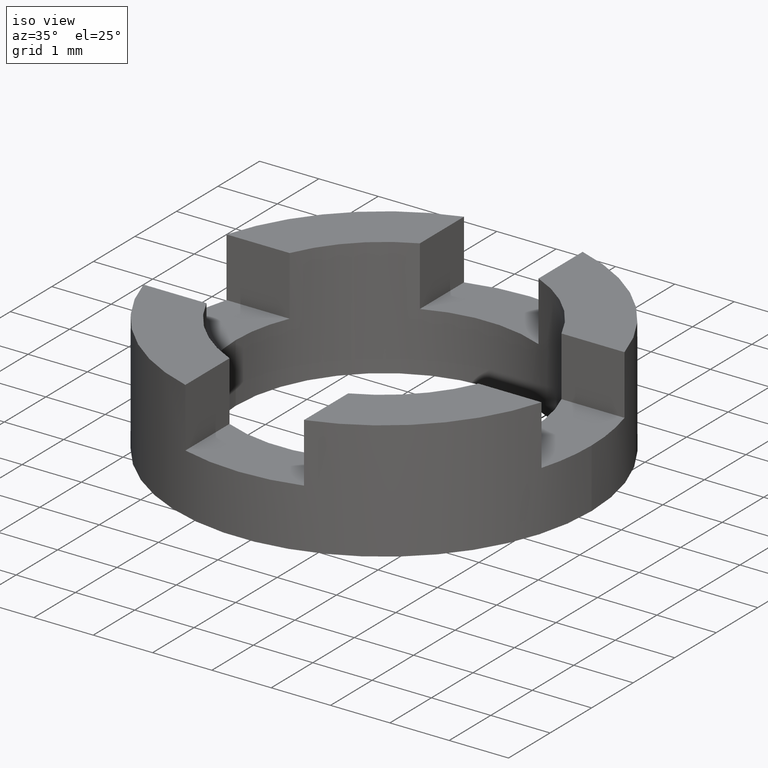
[diagram: clean part render]
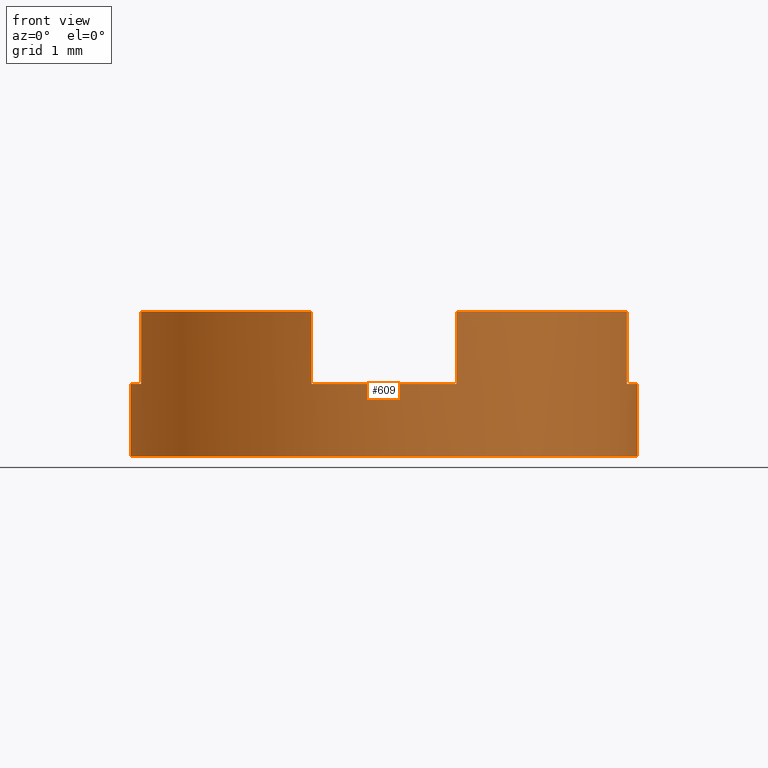
[diagram: tour spotlight — one face highlighted and labeled with its STEP entity id]
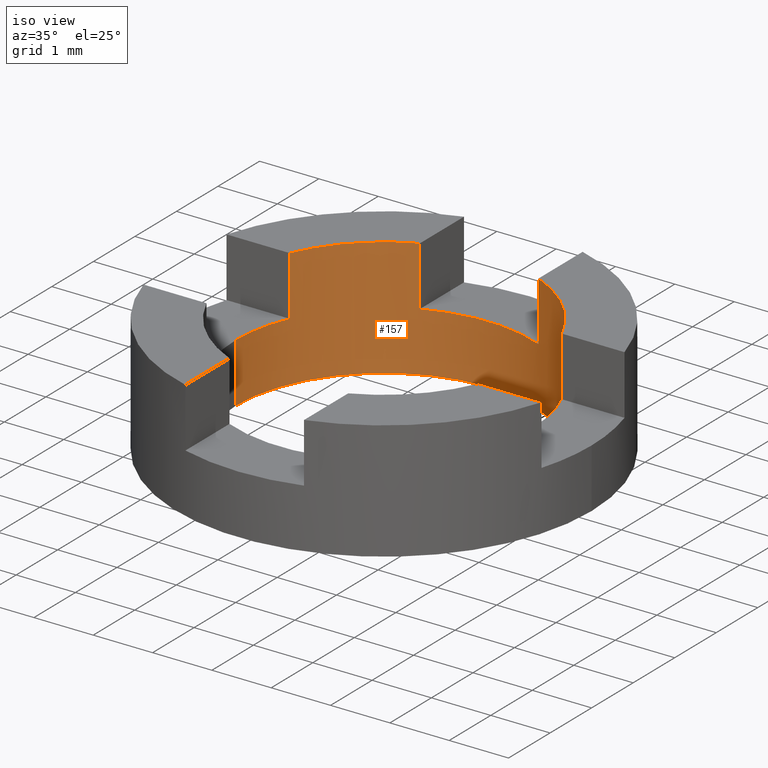
[diagram: tour spotlight — one face highlighted and labeled with its STEP entity id]
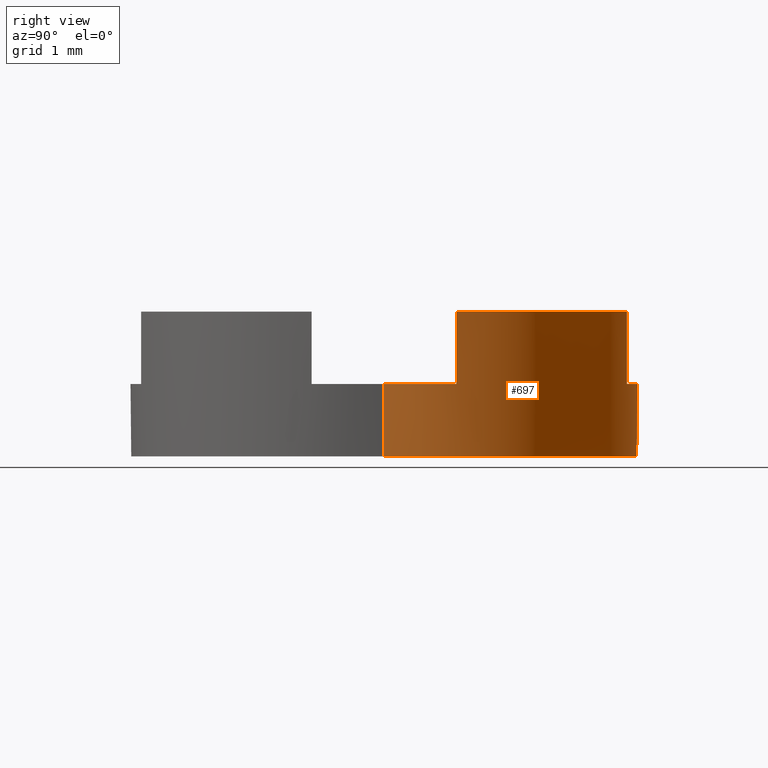
[diagram: tour spotlight — one face highlighted and labeled with its STEP entity id]
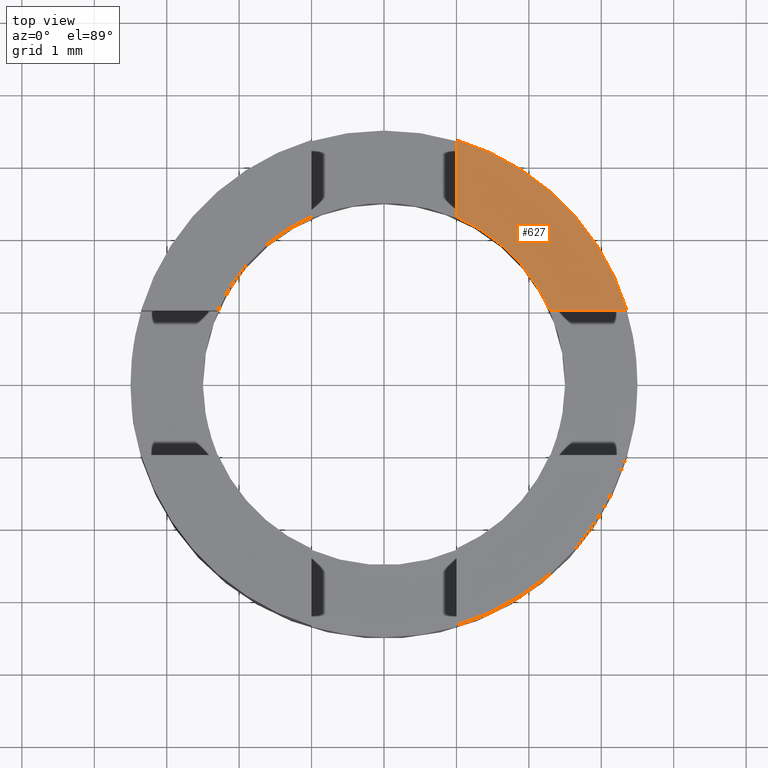
[diagram: tour spotlight — one face highlighted and labeled with its STEP entity id]
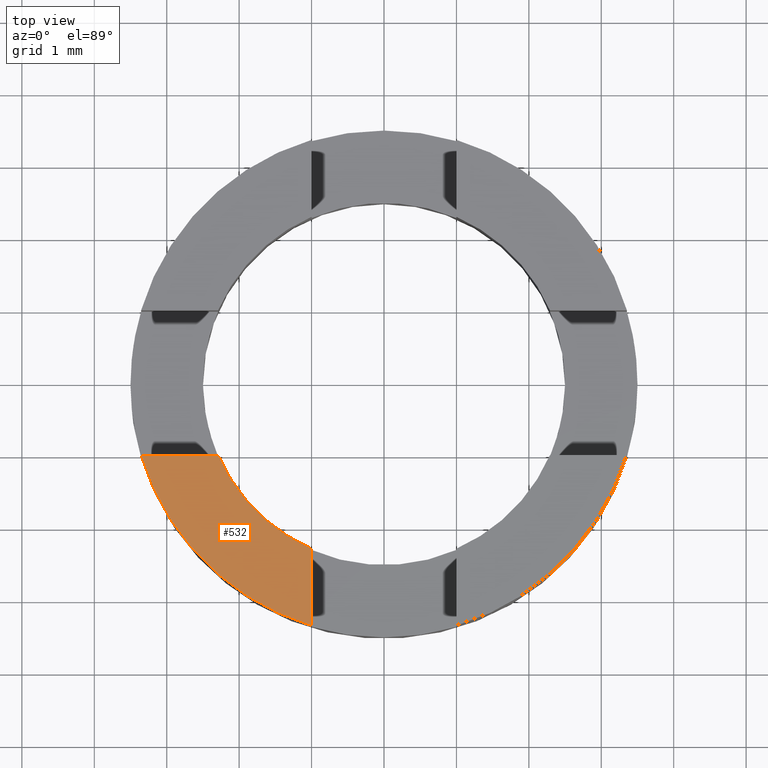
[diagram: tour spotlight — one face highlighted and labeled with its STEP entity id]
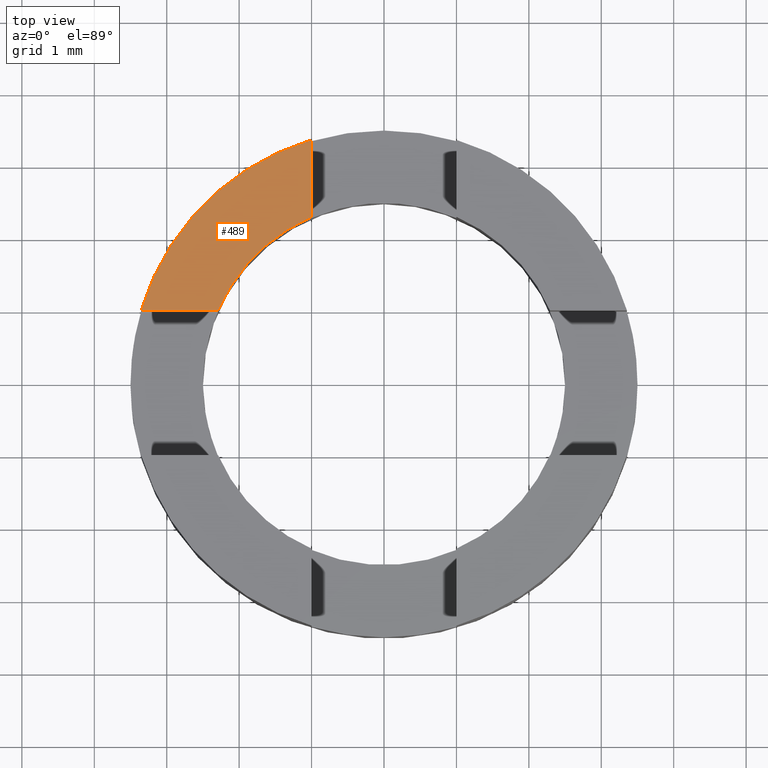
[diagram: tour spotlight — one face highlighted and labeled with its STEP entity id]
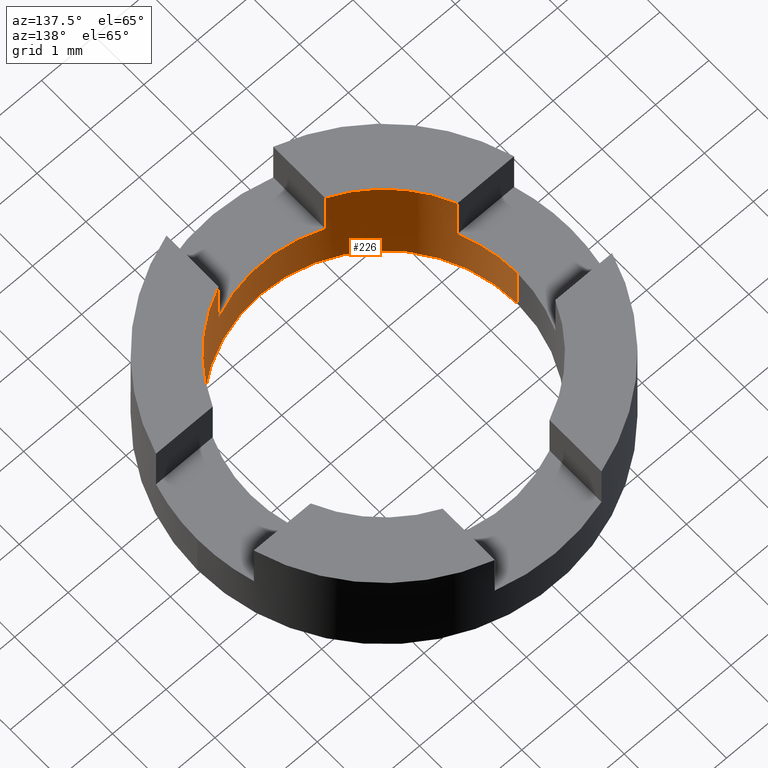
[diagram: tour spotlight — one face highlighted and labeled with its STEP entity id]
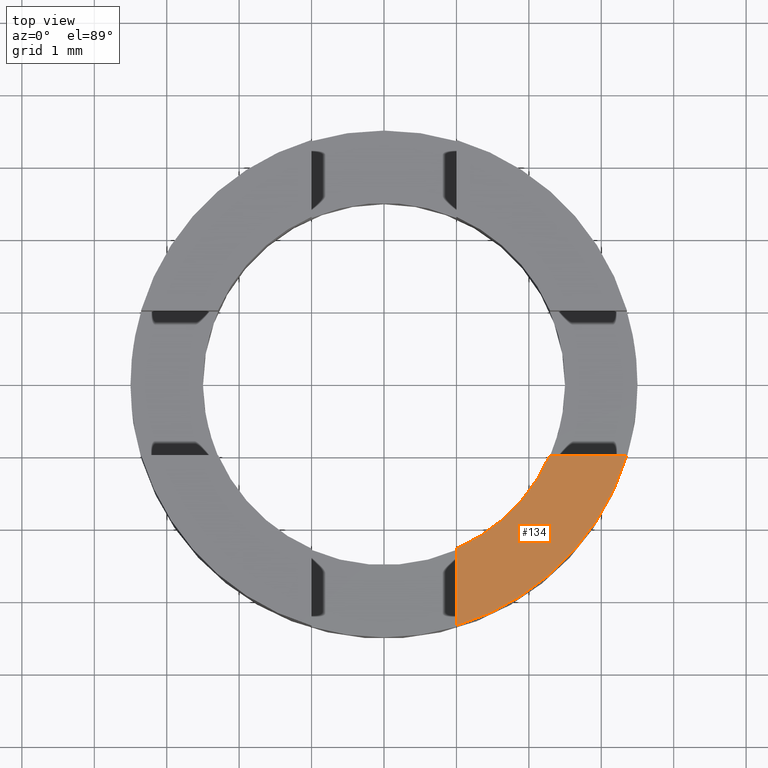
[diagram: tour spotlight — one face highlighted and labeled with its STEP entity id]
A machine part: a face-by-face anatomy tour. The part has 21 B-rep faces; the first image is the clean iso view, then the 8 largest visible faces are spotlighted one at a time (largest first), each with its STEP entity span.

Face 1 — front view, entity #609. In plain terms, the highlighted cylindrical surface (partial cylindrical patch) has radius 3.5 mm, axis along (-0, -0, -1).
Definition (entity closure, byte-faithful):
#16 = VERTEX_POINT ( 'NONE', #773 ) ;
#29 = EDGE_CURVE ( 'NONE', #696, #438, #639, .T. ) ;
#30 = DIRECTION ( 'NONE',  ( 1.000000000000000000, 0.000000000000000000, 0.000000000000000000 ) ) ;
#39 = CARTESIAN_POINT ( 'NONE',  ( -3.354101966249594557, -1.000000000000301981, 1.000000000000000000 ) ) ;
#48 = CYLINDRICAL_SURFACE ( 'NONE', #84, 3.500000000000000000 ) ;
#61 = FACE_OUTER_BOUND ( 'NONE', #716, .T. ) ;
#74 = VECTOR ( 'NONE', #175, 1000.000000000000000 ) ;
#77 = CARTESIAN_POINT ( 'NONE',  ( 3.500000000000000000, 4.286263797015736595E-16, 2.000000000000000000 ) ) ;
#78 = EDGE_CURVE ( 'NONE', #743, #448, #588, .T. ) ;
#84 = AXIS2_PLACEMENT_3D ( 'NONE', #416, #171, #782 ) ;
#93 = ORIENTED_EDGE ( 'NONE', *, *, #29, .T. ) ;
#100 = VERTEX_POINT ( 'NONE', #523 ) ;
#103 = EDGE_CURVE ( 'NONE', #691, #743, #112, .T. ) ;
#110 = CARTESIAN_POINT ( 'NONE',  ( -0.9999999999996528333, -3.354101966249788180, 2.000000000000000000 ) ) ;
#112 = CIRCLE ( 'NONE', #554, 3.500000000000000000 ) ;
#131 = EDGE_CURVE ( 'NONE', #696, #258, #494, .T. ) ;
#137 = ORIENTED_EDGE ( 'NONE', *, *, #498, .T. ) ;
#145 = DIRECTION ( 'NONE',  ( 0.000000000000000000, 0.000000000000000000, 1.000000000000000000 ) ) ;
#163 = LINE ( 'NONE', #303, #390 ) ;
#171 = DIRECTION ( 'NONE',  ( -0.000000000000000000, -0.000000000000000000, -1.000000000000000000 ) ) ;
#174 = DIRECTION ( 'NONE',  ( -1.000000000000000000, 0.000000000000000000, 0.000000000000000000 ) ) ;
#175 = DIRECTION ( 'NONE',  ( -0.000000000000000000, -0.000000000000000000, -1.000000000000000000 ) ) ;
#193 = CIRCLE ( 'NONE', #358, 3.500000000000000000 ) ;
#207 = ORIENTED_EDGE ( 'NONE', *, *, #719, .T. ) ;
#222 = ORIENTED_EDGE ( 'NONE', *, *, #286, .F. ) ;
#229 = CARTESIAN_POINT ( 'NONE',  ( 0.000000000000000000, 0.000000000000000000, 1.000000000000000000 ) ) ;
#237 = CARTESIAN_POINT ( 'NONE',  ( -0.9999999999996528333, -3.354101966249788180, 1.000000000000000000 ) ) ;
#243 = DIRECTION ( 'NONE',  ( -1.000000000000000000, 0.000000000000000000, 0.000000000000000000 ) ) ;
#256 = EDGE_CURVE ( 'NONE', #387, #100, #193, .T. ) ;
#258 = VERTEX_POINT ( 'NONE', #457 ) ;
#261 = DIRECTION ( 'NONE',  ( -0.000000000000000000, -0.000000000000000000, -1.000000000000000000 ) ) ;
#286 = EDGE_CURVE ( 'NONE', #16, #448, #567, .T. ) ;
#294 = CARTESIAN_POINT ( 'NONE',  ( 1.000000000000347278, -3.354101966249581235, 2.000000000000000000 ) ) ;
#296 = CARTESIAN_POINT ( 'NONE',  ( 0.000000000000000000, 0.000000000000000000, 1.000000000000000000 ) ) ;
#302 = DIRECTION ( 'NONE',  ( 0.000000000000000000, -0.000000000000000000, -1.000000000000000000 ) ) ;
#303 = CARTESIAN_POINT ( 'NONE',  ( 3.354101966249698030, -0.9999999999999547029, 2.000000000000000000 ) ) ;
#306 = LINE ( 'NONE', #602, #483 ) ;
#310 = CARTESIAN_POINT ( 'NONE',  ( 0.000000000000000000, 0.000000000000000000, 1.000000000000000000 ) ) ;
#331 = VECTOR ( 'NONE', #591, 1000.000000000000000 ) ;
#333 = CIRCLE ( 'NONE', #669, 3.500000000000000000 ) ;
#340 = DIRECTION ( 'NONE',  ( 0.000000000000000000, 0.000000000000000000, 1.000000000000000000 ) ) ;
#343 = DIRECTION ( 'NONE',  ( -0.000000000000000000, -0.000000000000000000, -1.000000000000000000 ) ) ;
#354 = DIRECTION ( 'NONE',  ( -1.000000000000000000, 0.000000000000000000, 0.000000000000000000 ) ) ;
#358 = AXIS2_PLACEMENT_3D ( 'NONE', #681, #340, #689 ) ;
#362 = LINE ( 'NONE', #587, #466 ) ;
#371 = AXIS2_PLACEMENT_3D ( 'NONE', #637, #145, #30 ) ;
#387 = VERTEX_POINT ( 'NONE', #294 ) ;
#389 = ORIENTED_EDGE ( 'NONE', *, *, #78, .T. ) ;
#390 = VECTOR ( 'NONE', #414, 1000.000000000000000 ) ;
#411 = EDGE_CURVE ( 'NONE', #16, #536, #362, .T. ) ;
#414 = DIRECTION ( 'NONE',  ( 0.000000000000000000, 0.000000000000000000, 1.000000000000000000 ) ) ;
#416 = CARTESIAN_POINT ( 'NONE',  ( 0.000000000000000000, 0.000000000000000000, 2.000000000000000000 ) ) ;
#426 = CARTESIAN_POINT ( 'NONE',  ( 0.000000000000000000, 0.000000000000000000, 0.000000000000000000 ) ) ;
#430 = DIRECTION ( 'NONE',  ( -0.000000000000000000, -0.000000000000000000, -1.000000000000000000 ) ) ;
#438 = VERTEX_POINT ( 'NONE', #642 ) ;
#440 = VERTEX_POINT ( 'NONE', #526 ) ;
#448 = VERTEX_POINT ( 'NONE', #110 ) ;
#451 = ORIENTED_EDGE ( 'NONE', *, *, #131, .F. ) ;
#457 = CARTESIAN_POINT ( 'NONE',  ( 3.500000000000000000, 4.286263797015736595E-16, 0.000000000000000000 ) ) ;
#466 = VECTOR ( 'NONE', #343, 1000.000000000000000 ) ;
#483 = VECTOR ( 'NONE', #430, 1000.000000000000000 ) ;
#492 = ORIENTED_EDGE ( 'NONE', *, *, #740, .T. ) ;
#494 = LINE ( 'NONE', #77, #653 ) ;
#498 = EDGE_CURVE ( 'NONE', #438, #100, #163, .T. ) ;
#512 = ORIENTED_EDGE ( 'NONE', *, *, #103, .T. ) ;
#513 = VERTEX_POINT ( 'NONE', #649 ) ;
#520 = ORIENTED_EDGE ( 'NONE', *, *, #411, .T. ) ;
#523 = CARTESIAN_POINT ( 'NONE',  ( 3.354101966249698030, -0.9999999999999547029, 2.000000000000000000 ) ) ;
#524 = DIRECTION ( 'NONE',  ( 0.000000000000000000, 0.000000000000000000, 1.000000000000000000 ) ) ;
#526 = CARTESIAN_POINT ( 'NONE',  ( -3.500000000000000000, 0.000000000000000000, 1.000000000000000000 ) ) ;
#533 = DIRECTION ( 'NONE',  ( 0.000000000000000000, 0.000000000000000000, -1.000000000000000000 ) ) ;
#534 = CARTESIAN_POINT ( 'NONE',  ( 3.500000000000000000, 4.286263797015736595E-16, 1.000000000000000000 ) ) ;
#536 = VERTEX_POINT ( 'NONE', #39 ) ;
#554 = AXIS2_PLACEMENT_3D ( 'NONE', #296, #533, #243 ) ;
#565 = AXIS2_PLACEMENT_3D ( 'NONE', #229, #604, #174 ) ;
#566 = ORIENTED_EDGE ( 'NONE', *, *, #256, .F. ) ;
#567 = CIRCLE ( 'NONE', #371, 3.500000000000000000 ) ;
#587 = CARTESIAN_POINT ( 'NONE',  ( -3.354101966249594557, -1.000000000000301981, 2.000000000000000000 ) ) ;
#588 = LINE ( 'NONE', #601, #331 ) ;
#591 = DIRECTION ( 'NONE',  ( 0.000000000000000000, 0.000000000000000000, 1.000000000000000000 ) ) ;
#598 = CARTESIAN_POINT ( 'NONE',  ( 1.000000000000347278, -3.354101966249581235, 1.000000000000000000 ) ) ;
#601 = CARTESIAN_POINT ( 'NONE',  ( -0.9999999999996528333, -3.354101966249788180, 2.000000000000000000 ) ) ;
#602 = CARTESIAN_POINT ( 'NONE',  ( -3.500000000000000000, 0.000000000000000000, 2.000000000000000000 ) ) ;
#604 = DIRECTION ( 'NONE',  ( 0.000000000000000000, 0.000000000000000000, -1.000000000000000000 ) ) ;
#609 = ADVANCED_FACE ( 'NONE', ( #61 ), #48, .T. ) ;
#611 = ORIENTED_EDGE ( 'NONE', *, *, #614, .T. ) ;
#614 = EDGE_CURVE ( 'NONE', #536, #440, #680, .T. ) ;
#618 = AXIS2_PLACEMENT_3D ( 'NONE', #310, #302, #354 ) ;
#637 = CARTESIAN_POINT ( 'NONE',  ( 0.000000000000000000, 0.000000000000000000, 2.000000000000000000 ) ) ;
#639 = CIRCLE ( 'NONE', #565, 3.500000000000000000 ) ;
#642 = CARTESIAN_POINT ( 'NONE',  ( 3.354101966249698030, -0.9999999999999547029, 1.000000000000000000 ) ) ;
#649 = CARTESIAN_POINT ( 'NONE',  ( -3.500000000000000000, 0.000000000000000000, 0.000000000000000000 ) ) ;
#653 = VECTOR ( 'NONE', #261, 1000.000000000000000 ) ;
#660 = EDGE_CURVE ( 'NONE', #440, #513, #306, .T. ) ;
#669 = AXIS2_PLACEMENT_3D ( 'NONE', #426, #524, #768 ) ;
#680 = CIRCLE ( 'NONE', #618, 3.500000000000000000 ) ;
#681 = CARTESIAN_POINT ( 'NONE',  ( 0.000000000000000000, 0.000000000000000000, 2.000000000000000000 ) ) ;
#689 = DIRECTION ( 'NONE',  ( 1.000000000000000000, 0.000000000000000000, 0.000000000000000000 ) ) ;
#691 = VERTEX_POINT ( 'NONE', #598 ) ;
#696 = VERTEX_POINT ( 'NONE', #534 ) ;
#714 = LINE ( 'NONE', #717, #74 ) ;
#716 = EDGE_LOOP ( 'NONE', ( #451, #93, #137, #566, #207, #512, #389, #222, #520, #611, #781, #492 ) ) ;
#717 = CARTESIAN_POINT ( 'NONE',  ( 1.000000000000347278, -3.354101966249581235, 2.000000000000000000 ) ) ;
#719 = EDGE_CURVE ( 'NONE', #387, #691, #714, .T. ) ;
#740 = EDGE_CURVE ( 'NONE', #513, #258, #333, .T. ) ;
#743 = VERTEX_POINT ( 'NONE', #237 ) ;
#768 = DIRECTION ( 'NONE',  ( 1.000000000000000000, 0.000000000000000000, 0.000000000000000000 ) ) ;
#773 = CARTESIAN_POINT ( 'NONE',  ( -3.354101966249594557, -1.000000000000301981, 2.000000000000000000 ) ) ;
#781 = ORIENTED_EDGE ( 'NONE', *, *, #660, .T. ) ;
#782 = DIRECTION ( 'NONE',  ( -1.000000000000000000, 0.000000000000000000, 0.000000000000000000 ) ) ;

Face 2 — iso view, entity #157. In plain terms, the highlighted cylindrical surface (partial cylindrical patch) has radius 2.5 mm, axis along (-0, -0, -1).
Definition (entity closure, byte-faithful):
#13 = DIRECTION ( 'NONE',  ( 0.000000000000000000, 0.000000000000000000, -1.000000000000000000 ) ) ;
#18 = CARTESIAN_POINT ( 'NONE',  ( 2.291287847477900819, 1.000000000000045075, 2.000000000000000000 ) ) ;
#37 = VECTOR ( 'NONE', #388, 1000.000000000000000 ) ;
#41 = CARTESIAN_POINT ( 'NONE',  ( 0.000000000000000000, 0.000000000000000000, 0.000000000000000000 ) ) ;
#42 = CARTESIAN_POINT ( 'NONE',  ( 0.000000000000000000, 0.000000000000000000, 1.000000000000000000 ) ) ;
#45 = DIRECTION ( 'NONE',  ( 1.000000000000000000, 0.000000000000000000, 0.000000000000000000 ) ) ;
#46 = DIRECTION ( 'NONE',  ( 1.000000000000000000, 0.000000000000000000, 0.000000000000000000 ) ) ;
#67 = DIRECTION ( 'NONE',  ( 0.000000000000000000, 0.000000000000000000, 1.000000000000000000 ) ) ;
#75 = DIRECTION ( 'NONE',  ( -0.000000000000000000, -0.000000000000000000, -1.000000000000000000 ) ) ;
#76 = ORIENTED_EDGE ( 'NONE', *, *, #339, .F. ) ;
#81 = ORIENTED_EDGE ( 'NONE', *, *, #87, .T. ) ;
#87 = EDGE_CURVE ( 'NONE', #458, #317, #357, .T. ) ;
#96 = CARTESIAN_POINT ( 'NONE',  ( -0.9999999999999997780, 2.291287847477920359, 2.000000000000000000 ) ) ;
#99 = AXIS2_PLACEMENT_3D ( 'NONE', #41, #600, #45 ) ;
#101 = DIRECTION ( 'NONE',  ( 0.000000000000000000, 0.000000000000000000, 1.000000000000000000 ) ) ;
#105 = VERTEX_POINT ( 'NONE', #363 ) ;
#106 = CARTESIAN_POINT ( 'NONE',  ( 1.000000000000000222, 2.291287847477919914, 1.000000000000000000 ) ) ;
#118 = DIRECTION ( 'NONE',  ( 1.000000000000000000, 0.000000000000000000, 0.000000000000000000 ) ) ;
#120 = CARTESIAN_POINT ( 'NONE',  ( -2.500000000000000000, 0.000000000000000000, 2.000000000000000000 ) ) ;
#127 = VECTOR ( 'NONE', #741, 1000.000000000000000 ) ;
#133 = ORIENTED_EDGE ( 'NONE', *, *, #330, .F. ) ;
#153 = CARTESIAN_POINT ( 'NONE',  ( 2.500000000000000000, 3.061616997868383141E-16, 2.000000000000000000 ) ) ;
#157 = ADVANCED_FACE ( 'NONE', ( #431 ), #314, .F. ) ;
#162 = EDGE_CURVE ( 'NONE', #397, #187, #204, .T. ) ;
#164 = CIRCLE ( 'NONE', #283, 2.500000000000000000 ) ;
#176 = EDGE_CURVE ( 'NONE', #574, #325, #248, .T. ) ;
#184 = CARTESIAN_POINT ( 'NONE',  ( 0.000000000000000000, 0.000000000000000000, 2.000000000000000000 ) ) ;
#187 = VERTEX_POINT ( 'NONE', #612 ) ;
#191 = CARTESIAN_POINT ( 'NONE',  ( -2.500000000000000000, 0.000000000000000000, 0.000000000000000000 ) ) ;
#201 = DIRECTION ( 'NONE',  ( -1.000000000000000000, 0.000000000000000000, 0.000000000000000000 ) ) ;
#202 = VERTEX_POINT ( 'NONE', #191 ) ;
#204 = CIRCLE ( 'NONE', #405, 2.500000000000000000 ) ;
#205 = CARTESIAN_POINT ( 'NONE',  ( -0.9999999999999997780, 2.291287847477920359, 1.000000000000000000 ) ) ;
#211 = CARTESIAN_POINT ( 'NONE',  ( 2.500000000000000000, 3.061616997868383141E-16, 1.000000000000000000 ) ) ;
#216 = DIRECTION ( 'NONE',  ( 0.000000000000000000, 0.000000000000000000, 1.000000000000000000 ) ) ;
#224 = ORIENTED_EDGE ( 'NONE', *, *, #423, .F. ) ;
#231 = DIRECTION ( 'NONE',  ( -1.000000000000000000, 0.000000000000000000, 0.000000000000000000 ) ) ;
#248 = CIRCLE ( 'NONE', #668, 2.500000000000000000 ) ;
#262 = EDGE_CURVE ( 'NONE', #321, #187, #577, .T. ) ;
#274 = EDGE_CURVE ( 'NONE', #378, #574, #400, .T. ) ;
#283 = AXIS2_PLACEMENT_3D ( 'NONE', #776, #766, #231 ) ;
#314 = CYLINDRICAL_SURFACE ( 'NONE', #491, 2.500000000000000000 ) ;
#315 = ORIENTED_EDGE ( 'NONE', *, *, #176, .F. ) ;
#317 = VERTEX_POINT ( 'NONE', #205 ) ;
#321 = VERTEX_POINT ( 'NONE', #515 ) ;
#325 = VERTEX_POINT ( 'NONE', #211 ) ;
#328 = LINE ( 'NONE', #153, #594 ) ;
#330 = EDGE_CURVE ( 'NONE', #397, #317, #459, .T. ) ;
#332 = VECTOR ( 'NONE', #384, 1000.000000000000000 ) ;
#334 = DIRECTION ( 'NONE',  ( -0.000000000000000000, -0.000000000000000000, -1.000000000000000000 ) ) ;
#336 = CARTESIAN_POINT ( 'NONE',  ( -2.291287847478052253, 0.9999999999996981304, 2.000000000000000000 ) ) ;
#337 = ORIENTED_EDGE ( 'NONE', *, *, #593, .T. ) ;
#339 = EDGE_CURVE ( 'NONE', #458, #372, #621, .T. ) ;
#344 = VECTOR ( 'NONE', #216, 1000.000000000000000 ) ;
#349 = CARTESIAN_POINT ( 'NONE',  ( -0.9999999999999997780, 2.291287847477920359, 2.000000000000000000 ) ) ;
#357 = CIRCLE ( 'NONE', #453, 2.500000000000000000 ) ;
#360 = LINE ( 'NONE', #120, #580 ) ;
#361 = EDGE_CURVE ( 'NONE', #325, #393, #328, .T. ) ;
#363 = CARTESIAN_POINT ( 'NONE',  ( -2.500000000000000000, 0.000000000000000000, 1.000000000000000000 ) ) ;
#372 = VERTEX_POINT ( 'NONE', #508 ) ;
#374 = DIRECTION ( 'NONE',  ( 1.000000000000000000, 0.000000000000000000, 0.000000000000000000 ) ) ;
#377 = CARTESIAN_POINT ( 'NONE',  ( 0.000000000000000000, 0.000000000000000000, 2.000000000000000000 ) ) ;
#378 = VERTEX_POINT ( 'NONE', #18 ) ;
#384 = DIRECTION ( 'NONE',  ( -0.000000000000000000, -0.000000000000000000, -1.000000000000000000 ) ) ;
#388 = DIRECTION ( 'NONE',  ( -0.000000000000000000, -0.000000000000000000, -1.000000000000000000 ) ) ;
#393 = VERTEX_POINT ( 'NONE', #708 ) ;
#396 = CARTESIAN_POINT ( 'NONE',  ( 2.291287847477900819, 1.000000000000045075, 2.000000000000000000 ) ) ;
#397 = VERTEX_POINT ( 'NONE', #349 ) ;
#399 = ORIENTED_EDGE ( 'NONE', *, *, #418, .T. ) ;
#400 = LINE ( 'NONE', #396, #37 ) ;
#403 = ORIENTED_EDGE ( 'NONE', *, *, #262, .F. ) ;
#405 = AXIS2_PLACEMENT_3D ( 'NONE', #377, #67, #374 ) ;
#407 = ORIENTED_EDGE ( 'NONE', *, *, #478, .F. ) ;
#418 = EDGE_CURVE ( 'NONE', #378, #372, #626, .T. ) ;
#423 = EDGE_CURVE ( 'NONE', #393, #202, #555, .T. ) ;
#431 = FACE_OUTER_BOUND ( 'NONE', #746, .T. ) ;
#435 = CARTESIAN_POINT ( 'NONE',  ( 0.000000000000000000, 0.000000000000000000, 2.000000000000000000 ) ) ;
#439 = CARTESIAN_POINT ( 'NONE',  ( 0.000000000000000000, 0.000000000000000000, 1.000000000000000000 ) ) ;
#453 = AXIS2_PLACEMENT_3D ( 'NONE', #42, #597, #46 ) ;
#458 = VERTEX_POINT ( 'NONE', #106 ) ;
#459 = LINE ( 'NONE', #96, #332 ) ;
#478 = EDGE_CURVE ( 'NONE', #105, #321, #164, .T. ) ;
#491 = AXIS2_PLACEMENT_3D ( 'NONE', #435, #75, #201 ) ;
#495 = ORIENTED_EDGE ( 'NONE', *, *, #274, .F. ) ;
#508 = CARTESIAN_POINT ( 'NONE',  ( 1.000000000000000222, 2.291287847477919914, 2.000000000000000000 ) ) ;
#515 = CARTESIAN_POINT ( 'NONE',  ( -2.291287847478052253, 0.9999999999996981304, 1.000000000000000000 ) ) ;
#545 = DIRECTION ( 'NONE',  ( -0.000000000000000000, -0.000000000000000000, -1.000000000000000000 ) ) ;
#547 = ORIENTED_EDGE ( 'NONE', *, *, #162, .T. ) ;
#555 = CIRCLE ( 'NONE', #99, 2.500000000000000000 ) ;
#558 = DIRECTION ( 'NONE',  ( -1.000000000000000000, 0.000000000000000000, 0.000000000000000000 ) ) ;
#562 = ORIENTED_EDGE ( 'NONE', *, *, #361, .F. ) ;
#574 = VERTEX_POINT ( 'NONE', #592 ) ;
#577 = LINE ( 'NONE', #336, #127 ) ;
#580 = VECTOR ( 'NONE', #545, 1000.000000000000000 ) ;
#592 = CARTESIAN_POINT ( 'NONE',  ( 2.291287847477900819, 1.000000000000045075, 1.000000000000000000 ) ) ;
#593 = EDGE_CURVE ( 'NONE', #105, #202, #360, .T. ) ;
#594 = VECTOR ( 'NONE', #334, 1000.000000000000000 ) ;
#597 = DIRECTION ( 'NONE',  ( 0.000000000000000000, -0.000000000000000000, 1.000000000000000000 ) ) ;
#600 = DIRECTION ( 'NONE',  ( 0.000000000000000000, 0.000000000000000000, 1.000000000000000000 ) ) ;
#612 = CARTESIAN_POINT ( 'NONE',  ( -2.291287847478052253, 0.9999999999996981304, 2.000000000000000000 ) ) ;
#621 = LINE ( 'NONE', #753, #344 ) ;
#626 = CIRCLE ( 'NONE', #641, 2.500000000000000000 ) ;
#641 = AXIS2_PLACEMENT_3D ( 'NONE', #184, #101, #118 ) ;
#668 = AXIS2_PLACEMENT_3D ( 'NONE', #439, #13, #558 ) ;
#708 = CARTESIAN_POINT ( 'NONE',  ( 2.500000000000000000, 3.061616997868383141E-16, 0.000000000000000000 ) ) ;
#741 = DIRECTION ( 'NONE',  ( 0.000000000000000000, 0.000000000000000000, 1.000000000000000000 ) ) ;
#746 = EDGE_LOOP ( 'NONE', ( #562, #315, #495, #399, #76, #81, #133, #547, #403, #407, #337, #224 ) ) ;
#753 = CARTESIAN_POINT ( 'NONE',  ( 1.000000000000000222, 2.291287847477919914, 2.000000000000000000 ) ) ;
#766 = DIRECTION ( 'NONE',  ( 0.000000000000000000, -0.000000000000000000, -1.000000000000000000 ) ) ;
#776 = CARTESIAN_POINT ( 'NONE',  ( 0.000000000000000000, 0.000000000000000000, 1.000000000000000000 ) ) ;

Face 3 — right view, entity #697. In plain terms, the highlighted cylindrical surface (partial cylindrical patch) has radius 3.5 mm, axis along (-0, -0, -1).
Definition (entity closure, byte-faithful):
#12 = CIRCLE ( 'NONE', #544, 3.500000000000000000 ) ;
#22 = VECTOR ( 'NONE', #564, 1000.000000000000000 ) ;
#31 = VERTEX_POINT ( 'NONE', #52 ) ;
#32 = CARTESIAN_POINT ( 'NONE',  ( 0.000000000000000000, 0.000000000000000000, 1.000000000000000000 ) ) ;
#33 = VERTEX_POINT ( 'NONE', #643 ) ;
#40 = VERTEX_POINT ( 'NONE', #59 ) ;
#43 = CYLINDRICAL_SURFACE ( 'NONE', #606, 3.500000000000000000 ) ;
#52 = CARTESIAN_POINT ( 'NONE',  ( -3.354101966249774858, 0.9999999999996979083, 2.000000000000000000 ) ) ;
#53 = DIRECTION ( 'NONE',  ( 0.000000000000000000, 0.000000000000000000, 1.000000000000000000 ) ) ;
#59 = CARTESIAN_POINT ( 'NONE',  ( 3.354101966249671385, 1.000000000000045297, 1.000000000000000000 ) ) ;
#69 = EDGE_CURVE ( 'NONE', #735, #31, #690, .T. ) ;
#72 = AXIS2_PLACEMENT_3D ( 'NONE', #307, #603, #122 ) ;
#77 = CARTESIAN_POINT ( 'NONE',  ( 3.500000000000000000, 4.286263797015736595E-16, 2.000000000000000000 ) ) ;
#88 = CARTESIAN_POINT ( 'NONE',  ( -0.9999999999999997780, 3.354101966249684708, 1.000000000000000000 ) ) ;
#98 = VERTEX_POINT ( 'NONE', #291 ) ;
#119 = DIRECTION ( 'NONE',  ( 1.000000000000000000, 0.000000000000000000, 0.000000000000000000 ) ) ;
#122 = DIRECTION ( 'NONE',  ( 1.000000000000000000, 0.000000000000000000, 0.000000000000000000 ) ) ;
#124 = DIRECTION ( 'NONE',  ( -1.000000000000000000, 0.000000000000000000, 0.000000000000000000 ) ) ;
#128 = CIRCLE ( 'NONE', #260, 3.500000000000000000 ) ;
#131 = EDGE_CURVE ( 'NONE', #696, #258, #494, .T. ) ;
#138 = EDGE_CURVE ( 'NONE', #33, #40, #553, .T. ) ;
#151 = AXIS2_PLACEMENT_3D ( 'NONE', #711, #645, #471 ) ;
#161 = ORIENTED_EDGE ( 'NONE', *, *, #305, .T. ) ;
#180 = LINE ( 'NONE', #723, #406 ) ;
#186 = CARTESIAN_POINT ( 'NONE',  ( -0.9999999999999997780, 3.354101966249684708, 2.000000000000000000 ) ) ;
#188 = DIRECTION ( 'NONE',  ( -0.000000000000000000, -0.000000000000000000, -1.000000000000000000 ) ) ;
#189 = DIRECTION ( 'NONE',  ( 0.000000000000000000, 0.000000000000000000, 1.000000000000000000 ) ) ;
#233 = AXIS2_PLACEMENT_3D ( 'NONE', #421, #712, #119 ) ;
#236 = VECTOR ( 'NONE', #53, 1000.000000000000000 ) ;
#241 = CARTESIAN_POINT ( 'NONE',  ( 0.000000000000000000, 0.000000000000000000, 0.000000000000000000 ) ) ;
#251 = DIRECTION ( 'NONE',  ( 0.000000000000000000, 0.000000000000000000, 1.000000000000000000 ) ) ;
#258 = VERTEX_POINT ( 'NONE', #457 ) ;
#260 = AXIS2_PLACEMENT_3D ( 'NONE', #662, #477, #727 ) ;
#261 = DIRECTION ( 'NONE',  ( -0.000000000000000000, -0.000000000000000000, -1.000000000000000000 ) ) ;
#265 = ORIENTED_EDGE ( 'NONE', *, *, #138, .T. ) ;
#270 = LINE ( 'NONE', #279, #22 ) ;
#271 = ORIENTED_EDGE ( 'NONE', *, *, #685, .T. ) ;
#279 = CARTESIAN_POINT ( 'NONE',  ( -0.9999999999999997780, 3.354101966249684708, 2.000000000000000000 ) ) ;
#281 = VERTEX_POINT ( 'NONE', #88 ) ;
#288 = CARTESIAN_POINT ( 'NONE',  ( 1.000000000000000222, 3.354101966249684708, 1.000000000000000000 ) ) ;
#289 = ORIENTED_EDGE ( 'NONE', *, *, #734, .T. ) ;
#291 = CARTESIAN_POINT ( 'NONE',  ( -3.354101966249774858, 0.9999999999996979083, 1.000000000000000000 ) ) ;
#305 = EDGE_CURVE ( 'NONE', #735, #281, #270, .T. ) ;
#306 = LINE ( 'NONE', #602, #483 ) ;
#307 = CARTESIAN_POINT ( 'NONE',  ( 0.000000000000000000, 0.000000000000000000, 2.000000000000000000 ) ) ;
#327 = VERTEX_POINT ( 'NONE', #450 ) ;
#346 = ORIENTED_EDGE ( 'NONE', *, *, #725, .T. ) ;
#368 = DIRECTION ( 'NONE',  ( -0.000000000000000000, -0.000000000000000000, -1.000000000000000000 ) ) ;
#395 = EDGE_CURVE ( 'NONE', #543, #281, #525, .T. ) ;
#406 = VECTOR ( 'NONE', #189, 1000.000000000000000 ) ;
#421 = CARTESIAN_POINT ( 'NONE',  ( 0.000000000000000000, 0.000000000000000000, 2.000000000000000000 ) ) ;
#422 = LINE ( 'NONE', #651, #236 ) ;
#430 = DIRECTION ( 'NONE',  ( -0.000000000000000000, -0.000000000000000000, -1.000000000000000000 ) ) ;
#440 = VERTEX_POINT ( 'NONE', #526 ) ;
#450 = CARTESIAN_POINT ( 'NONE',  ( 1.000000000000000222, 3.354101966249684708, 2.000000000000000000 ) ) ;
#457 = CARTESIAN_POINT ( 'NONE',  ( 3.500000000000000000, 4.286263797015736595E-16, 0.000000000000000000 ) ) ;
#471 = DIRECTION ( 'NONE',  ( 1.000000000000000000, 0.000000000000000000, 0.000000000000000000 ) ) ;
#474 = DIRECTION ( 'NONE',  ( 1.000000000000000000, 0.000000000000000000, 0.000000000000000000 ) ) ;
#477 = DIRECTION ( 'NONE',  ( 0.000000000000000000, 0.000000000000000000, -1.000000000000000000 ) ) ;
#483 = VECTOR ( 'NONE', #430, 1000.000000000000000 ) ;
#486 = CARTESIAN_POINT ( 'NONE',  ( 0.000000000000000000, 0.000000000000000000, 2.000000000000000000 ) ) ;
#490 = CARTESIAN_POINT ( 'NONE',  ( 3.354101966249671385, 1.000000000000045297, 2.000000000000000000 ) ) ;
#494 = LINE ( 'NONE', #77, #653 ) ;
#500 = EDGE_LOOP ( 'NONE', ( #700, #751, #271, #518, #576, #346, #676, #161, #550, #289, #764, #265 ) ) ;
#513 = VERTEX_POINT ( 'NONE', #649 ) ;
#518 = ORIENTED_EDGE ( 'NONE', *, *, #660, .F. ) ;
#525 = CIRCLE ( 'NONE', #151, 3.500000000000000000 ) ;
#526 = CARTESIAN_POINT ( 'NONE',  ( -3.500000000000000000, 0.000000000000000000, 1.000000000000000000 ) ) ;
#534 = CARTESIAN_POINT ( 'NONE',  ( 3.500000000000000000, 4.286263797015736595E-16, 1.000000000000000000 ) ) ;
#537 = FACE_OUTER_BOUND ( 'NONE', #500, .T. ) ;
#543 = VERTEX_POINT ( 'NONE', #288 ) ;
#544 = AXIS2_PLACEMENT_3D ( 'NONE', #241, #251, #474 ) ;
#548 = EDGE_CURVE ( 'NONE', #33, #327, #654, .T. ) ;
#550 = ORIENTED_EDGE ( 'NONE', *, *, #395, .F. ) ;
#553 = LINE ( 'NONE', #490, #720 ) ;
#564 = DIRECTION ( 'NONE',  ( -0.000000000000000000, -0.000000000000000000, -1.000000000000000000 ) ) ;
#572 = DIRECTION ( 'NONE',  ( -1.000000000000000000, 0.000000000000000000, 0.000000000000000000 ) ) ;
#576 = ORIENTED_EDGE ( 'NONE', *, *, #755, .T. ) ;
#602 = CARTESIAN_POINT ( 'NONE',  ( -3.500000000000000000, 0.000000000000000000, 2.000000000000000000 ) ) ;
#603 = DIRECTION ( 'NONE',  ( 0.000000000000000000, 0.000000000000000000, 1.000000000000000000 ) ) ;
#606 = AXIS2_PLACEMENT_3D ( 'NONE', #486, #368, #124 ) ;
#640 = DIRECTION ( 'NONE',  ( 0.000000000000000000, -0.000000000000000000, -1.000000000000000000 ) ) ;
#643 = CARTESIAN_POINT ( 'NONE',  ( 3.354101966249671385, 1.000000000000045297, 2.000000000000000000 ) ) ;
#645 = DIRECTION ( 'NONE',  ( 0.000000000000000000, -0.000000000000000000, 1.000000000000000000 ) ) ;
#649 = CARTESIAN_POINT ( 'NONE',  ( -3.500000000000000000, 0.000000000000000000, 0.000000000000000000 ) ) ;
#651 = CARTESIAN_POINT ( 'NONE',  ( 1.000000000000000222, 3.354101966249684708, 2.000000000000000000 ) ) ;
#653 = VECTOR ( 'NONE', #261, 1000.000000000000000 ) ;
#654 = CIRCLE ( 'NONE', #72, 3.500000000000000000 ) ;
#660 = EDGE_CURVE ( 'NONE', #440, #513, #306, .T. ) ;
#662 = CARTESIAN_POINT ( 'NONE',  ( 0.000000000000000000, 0.000000000000000000, 1.000000000000000000 ) ) ;
#664 = EDGE_CURVE ( 'NONE', #40, #696, #128, .T. ) ;
#676 = ORIENTED_EDGE ( 'NONE', *, *, #69, .F. ) ;
#685 = EDGE_CURVE ( 'NONE', #258, #513, #12, .T. ) ;
#690 = CIRCLE ( 'NONE', #233, 3.500000000000000000 ) ;
#694 = CIRCLE ( 'NONE', #732, 3.500000000000000000 ) ;
#696 = VERTEX_POINT ( 'NONE', #534 ) ;
#697 = ADVANCED_FACE ( 'NONE', ( #537 ), #43, .T. ) ;
#700 = ORIENTED_EDGE ( 'NONE', *, *, #664, .T. ) ;
#711 = CARTESIAN_POINT ( 'NONE',  ( 0.000000000000000000, 0.000000000000000000, 1.000000000000000000 ) ) ;
#712 = DIRECTION ( 'NONE',  ( 0.000000000000000000, 0.000000000000000000, 1.000000000000000000 ) ) ;
#720 = VECTOR ( 'NONE', #188, 1000.000000000000000 ) ;
#723 = CARTESIAN_POINT ( 'NONE',  ( -3.354101966249774858, 0.9999999999996979083, 2.000000000000000000 ) ) ;
#725 = EDGE_CURVE ( 'NONE', #98, #31, #180, .T. ) ;
#727 = DIRECTION ( 'NONE',  ( -1.000000000000000000, 0.000000000000000000, 0.000000000000000000 ) ) ;
#732 = AXIS2_PLACEMENT_3D ( 'NONE', #32, #640, #572 ) ;
#734 = EDGE_CURVE ( 'NONE', #543, #327, #422, .T. ) ;
#735 = VERTEX_POINT ( 'NONE', #186 ) ;
#751 = ORIENTED_EDGE ( 'NONE', *, *, #131, .T. ) ;
#755 = EDGE_CURVE ( 'NONE', #440, #98, #694, .T. ) ;
#764 = ORIENTED_EDGE ( 'NONE', *, *, #548, .F. ) ;

Face 4 — top view, entity #627. In plain terms, the highlighted planar face has unit normal (0, 0, 1).
Definition (entity closure, byte-faithful):
#4 = PLANE ( 'NONE',  #528 ) ;
#5 = CARTESIAN_POINT ( 'NONE',  ( 1.805037895306199625, 1.000000000000045075, 2.000000000000000000 ) ) ;
#18 = CARTESIAN_POINT ( 'NONE',  ( 2.291287847477900819, 1.000000000000045075, 2.000000000000000000 ) ) ;
#23 = ORIENTED_EDGE ( 'NONE', *, *, #220, .F. ) ;
#33 = VERTEX_POINT ( 'NONE', #643 ) ;
#57 = CARTESIAN_POINT ( 'NONE',  ( 0.000000000000000000, 0.000000000000000000, 2.000000000000000000 ) ) ;
#62 = VECTOR ( 'NONE', #485, 1000.000000000000000 ) ;
#72 = AXIS2_PLACEMENT_3D ( 'NONE', #307, #603, #122 ) ;
#101 = DIRECTION ( 'NONE',  ( 0.000000000000000000, 0.000000000000000000, 1.000000000000000000 ) ) ;
#117 = EDGE_CURVE ( 'NONE', #33, #378, #672, .T. ) ;
#118 = DIRECTION ( 'NONE',  ( 1.000000000000000000, 0.000000000000000000, 0.000000000000000000 ) ) ;
#122 = DIRECTION ( 'NONE',  ( 1.000000000000000000, 0.000000000000000000, 0.000000000000000000 ) ) ;
#125 = LINE ( 'NONE', #675, #62 ) ;
#184 = CARTESIAN_POINT ( 'NONE',  ( 0.000000000000000000, 0.000000000000000000, 2.000000000000000000 ) ) ;
#215 = VECTOR ( 'NONE', #254, 1000.000000000000000 ) ;
#220 = EDGE_CURVE ( 'NONE', #372, #327, #125, .T. ) ;
#254 = DIRECTION ( 'NONE',  ( -1.000000000000000000, -1.279323200775836975E-16, -0.000000000000000000 ) ) ;
#278 = ORIENTED_EDGE ( 'NONE', *, *, #418, .F. ) ;
#298 = FACE_OUTER_BOUND ( 'NONE', #433, .T. ) ;
#307 = CARTESIAN_POINT ( 'NONE',  ( 0.000000000000000000, 0.000000000000000000, 2.000000000000000000 ) ) ;
#327 = VERTEX_POINT ( 'NONE', #450 ) ;
#372 = VERTEX_POINT ( 'NONE', #508 ) ;
#378 = VERTEX_POINT ( 'NONE', #18 ) ;
#380 = ORIENTED_EDGE ( 'NONE', *, *, #117, .F. ) ;
#418 = EDGE_CURVE ( 'NONE', #378, #372, #626, .T. ) ;
#433 = EDGE_LOOP ( 'NONE', ( #23, #278, #380, #460 ) ) ;
#450 = CARTESIAN_POINT ( 'NONE',  ( 1.000000000000000222, 3.354101966249684708, 2.000000000000000000 ) ) ;
#460 = ORIENTED_EDGE ( 'NONE', *, *, #548, .T. ) ;
#485 = DIRECTION ( 'NONE',  ( 0.000000000000000000, 1.000000000000000000, 0.000000000000000000 ) ) ;
#508 = CARTESIAN_POINT ( 'NONE',  ( 1.000000000000000222, 2.291287847477919914, 2.000000000000000000 ) ) ;
#528 = AXIS2_PLACEMENT_3D ( 'NONE', #57, #530, #710 ) ;
#530 = DIRECTION ( 'NONE',  ( 0.000000000000000000, 0.000000000000000000, 1.000000000000000000 ) ) ;
#548 = EDGE_CURVE ( 'NONE', #33, #327, #654, .T. ) ;
#603 = DIRECTION ( 'NONE',  ( 0.000000000000000000, 0.000000000000000000, 1.000000000000000000 ) ) ;
#626 = CIRCLE ( 'NONE', #641, 2.500000000000000000 ) ;
#627 = ADVANCED_FACE ( 'NONE', ( #298 ), #4, .T. ) ;
#641 = AXIS2_PLACEMENT_3D ( 'NONE', #184, #101, #118 ) ;
#643 = CARTESIAN_POINT ( 'NONE',  ( 3.354101966249671385, 1.000000000000045297, 2.000000000000000000 ) ) ;
#654 = CIRCLE ( 'NONE', #72, 3.500000000000000000 ) ;
#672 = LINE ( 'NONE', #5, #215 ) ;
#675 = CARTESIAN_POINT ( 'NONE',  ( 1.000000000000000222, 1.805037895305898532, 2.000000000000000000 ) ) ;
#710 = DIRECTION ( 'NONE',  ( 1.000000000000000000, 0.000000000000000000, -0.000000000000000000 ) ) ;

Face 5 — top view, entity #532. In plain terms, the highlighted planar face has unit normal (0, 0, 1).
Definition (entity closure, byte-faithful):
#1 = AXIS2_PLACEMENT_3D ( 'NONE', #630, #26, #573 ) ;
#16 = VERTEX_POINT ( 'NONE', #773 ) ;
#26 = DIRECTION ( 'NONE',  ( 0.000000000000000000, 0.000000000000000000, 1.000000000000000000 ) ) ;
#30 = DIRECTION ( 'NONE',  ( 1.000000000000000000, 0.000000000000000000, 0.000000000000000000 ) ) ;
#104 = CARTESIAN_POINT ( 'NONE',  ( -0.9999999999996530553, -1.805037895306154994, 2.000000000000000000 ) ) ;
#110 = CARTESIAN_POINT ( 'NONE',  ( -0.9999999999996528333, -3.354101966249788180, 2.000000000000000000 ) ) ;
#126 = VERTEX_POINT ( 'NONE', #549 ) ;
#130 = ORIENTED_EDGE ( 'NONE', *, *, #286, .T. ) ;
#139 = AXIS2_PLACEMENT_3D ( 'NONE', #715, #178, #582 ) ;
#145 = DIRECTION ( 'NONE',  ( 0.000000000000000000, 0.000000000000000000, 1.000000000000000000 ) ) ;
#167 = VECTOR ( 'NONE', #774, 1000.000000000000000 ) ;
#178 = DIRECTION ( 'NONE',  ( 0.000000000000000000, 0.000000000000000000, 1.000000000000000000 ) ) ;
#206 = ORIENTED_EDGE ( 'NONE', *, *, #452, .F. ) ;
#223 = CARTESIAN_POINT ( 'NONE',  ( -0.9999999999996530553, -2.291287847478071349, 2.000000000000000000 ) ) ;
#242 = FACE_OUTER_BOUND ( 'NONE', #341, .T. ) ;
#247 = LINE ( 'NONE', #104, #167 ) ;
#267 = VERTEX_POINT ( 'NONE', #223 ) ;
#280 = EDGE_CURVE ( 'NONE', #126, #267, #731, .T. ) ;
#286 = EDGE_CURVE ( 'NONE', #16, #448, #567, .T. ) ;
#341 = EDGE_LOOP ( 'NONE', ( #748, #635, #206, #130 ) ) ;
#371 = AXIS2_PLACEMENT_3D ( 'NONE', #637, #145, #30 ) ;
#448 = VERTEX_POINT ( 'NONE', #110 ) ;
#452 = EDGE_CURVE ( 'NONE', #16, #126, #772, .T. ) ;
#475 = PLANE ( 'NONE',  #139 ) ;
#514 = VECTOR ( 'NONE', #535, 1000.000000000000000 ) ;
#532 = ADVANCED_FACE ( 'NONE', ( #242 ), #475, .T. ) ;
#535 = DIRECTION ( 'NONE',  ( 1.000000000000000000, 2.558646401551673950E-16, -0.000000000000000000 ) ) ;
#549 = CARTESIAN_POINT ( 'NONE',  ( -2.291287847477788020, -1.000000000000301759, 2.000000000000000000 ) ) ;
#567 = CIRCLE ( 'NONE', #371, 3.500000000000000000 ) ;
#573 = DIRECTION ( 'NONE',  ( 1.000000000000000000, 0.000000000000000000, 0.000000000000000000 ) ) ;
#582 = DIRECTION ( 'NONE',  ( 1.000000000000000000, 0.000000000000000000, -0.000000000000000000 ) ) ;
#630 = CARTESIAN_POINT ( 'NONE',  ( 0.000000000000000000, 0.000000000000000000, 2.000000000000000000 ) ) ;
#635 = ORIENTED_EDGE ( 'NONE', *, *, #280, .F. ) ;
#637 = CARTESIAN_POINT ( 'NONE',  ( 0.000000000000000000, 0.000000000000000000, 2.000000000000000000 ) ) ;
#674 = EDGE_CURVE ( 'NONE', #267, #448, #247, .T. ) ;
#715 = CARTESIAN_POINT ( 'NONE',  ( 0.000000000000000000, 0.000000000000000000, 2.000000000000000000 ) ) ;
#731 = CIRCLE ( 'NONE', #1, 2.500000000000000000 ) ;
#748 = ORIENTED_EDGE ( 'NONE', *, *, #674, .F. ) ;
#763 = CARTESIAN_POINT ( 'NONE',  ( -1.805037895305852569, -1.000000000000301537, 2.000000000000000000 ) ) ;
#772 = LINE ( 'NONE', #763, #514 ) ;
#773 = CARTESIAN_POINT ( 'NONE',  ( -3.354101966249594557, -1.000000000000301981, 2.000000000000000000 ) ) ;
#774 = DIRECTION ( 'NONE',  ( 1.279323200775837714E-16, -1.000000000000000000, 0.000000000000000000 ) ) ;

Face 6 — top view, entity #489. In plain terms, the highlighted planar face has unit normal (0, 0, 1).
Definition (entity closure, byte-faithful):
#31 = VERTEX_POINT ( 'NONE', #52 ) ;
#52 = CARTESIAN_POINT ( 'NONE',  ( -3.354101966249774858, 0.9999999999996979083, 2.000000000000000000 ) ) ;
#54 = DIRECTION ( 'NONE',  ( 1.000000000000000000, 0.000000000000000000, -0.000000000000000000 ) ) ;
#67 = DIRECTION ( 'NONE',  ( 0.000000000000000000, 0.000000000000000000, 1.000000000000000000 ) ) ;
#69 = EDGE_CURVE ( 'NONE', #735, #31, #690, .T. ) ;
#83 = VECTOR ( 'NONE', #561, 1000.000000000000000 ) ;
#95 = ORIENTED_EDGE ( 'NONE', *, *, #636, .F. ) ;
#119 = DIRECTION ( 'NONE',  ( 1.000000000000000000, 0.000000000000000000, 0.000000000000000000 ) ) ;
#162 = EDGE_CURVE ( 'NONE', #397, #187, #204, .T. ) ;
#166 = VECTOR ( 'NONE', #244, 1000.000000000000000 ) ;
#169 = CARTESIAN_POINT ( 'NONE',  ( 0.000000000000000000, 0.000000000000000000, 2.000000000000000000 ) ) ;
#186 = CARTESIAN_POINT ( 'NONE',  ( -0.9999999999999997780, 3.354101966249684708, 2.000000000000000000 ) ) ;
#187 = VERTEX_POINT ( 'NONE', #612 ) ;
#204 = CIRCLE ( 'NONE', #405, 2.500000000000000000 ) ;
#233 = AXIS2_PLACEMENT_3D ( 'NONE', #421, #712, #119 ) ;
#238 = FACE_OUTER_BOUND ( 'NONE', #586, .T. ) ;
#244 = DIRECTION ( 'NONE',  ( -0.000000000000000000, -1.000000000000000000, -0.000000000000000000 ) ) ;
#312 = AXIS2_PLACEMENT_3D ( 'NONE', #169, #703, #54 ) ;
#349 = CARTESIAN_POINT ( 'NONE',  ( -0.9999999999999997780, 2.291287847477920359, 2.000000000000000000 ) ) ;
#374 = DIRECTION ( 'NONE',  ( 1.000000000000000000, 0.000000000000000000, 0.000000000000000000 ) ) ;
#376 = EDGE_CURVE ( 'NONE', #187, #31, #392, .T. ) ;
#377 = CARTESIAN_POINT ( 'NONE',  ( 0.000000000000000000, 0.000000000000000000, 2.000000000000000000 ) ) ;
#392 = LINE ( 'NONE', #750, #83 ) ;
#397 = VERTEX_POINT ( 'NONE', #349 ) ;
#401 = ORIENTED_EDGE ( 'NONE', *, *, #376, .F. ) ;
#405 = AXIS2_PLACEMENT_3D ( 'NONE', #377, #67, #374 ) ;
#412 = LINE ( 'NONE', #647, #166 ) ;
#421 = CARTESIAN_POINT ( 'NONE',  ( 0.000000000000000000, 0.000000000000000000, 2.000000000000000000 ) ) ;
#468 = PLANE ( 'NONE',  #312 ) ;
#489 = ADVANCED_FACE ( 'NONE', ( #238 ), #468, .T. ) ;
#561 = DIRECTION ( 'NONE',  ( -1.000000000000000000, -2.558646401551674936E-16, 0.000000000000000000 ) ) ;
#586 = EDGE_LOOP ( 'NONE', ( #95, #634, #401, #702 ) ) ;
#612 = CARTESIAN_POINT ( 'NONE',  ( -2.291287847478052253, 0.9999999999996981304, 2.000000000000000000 ) ) ;
#634 = ORIENTED_EDGE ( 'NONE', *, *, #69, .T. ) ;
#636 = EDGE_CURVE ( 'NONE', #735, #397, #412, .T. ) ;
#647 = CARTESIAN_POINT ( 'NONE',  ( -0.9999999999999997780, 1.805037895305898088, 2.000000000000000000 ) ) ;
#690 = CIRCLE ( 'NONE', #233, 3.500000000000000000 ) ;
#702 = ORIENTED_EDGE ( 'NONE', *, *, #162, .F. ) ;
#703 = DIRECTION ( 'NONE',  ( 0.000000000000000000, 0.000000000000000000, 1.000000000000000000 ) ) ;
#712 = DIRECTION ( 'NONE',  ( 0.000000000000000000, 0.000000000000000000, 1.000000000000000000 ) ) ;
#735 = VERTEX_POINT ( 'NONE', #186 ) ;
#750 = CARTESIAN_POINT ( 'NONE',  ( -1.805037895305853235, 0.9999999999996983524, 2.000000000000000000 ) ) ;

Face 7 — auxiliary view, entity #226. In plain terms, the highlighted cylindrical surface (partial cylindrical patch) has radius 2.5 mm, axis along (-0, -0, -1).
Definition (entity closure, byte-faithful):
#1 = AXIS2_PLACEMENT_3D ( 'NONE', #630, #26, #573 ) ;
#7 = EDGE_CURVE ( 'NONE', #126, #66, #235, .T. ) ;
#10 = CIRCLE ( 'NONE', #97, 2.500000000000000000 ) ;
#17 = EDGE_CURVE ( 'NONE', #19, #219, #10, .T. ) ;
#19 = VERTEX_POINT ( 'NONE', #777 ) ;
#26 = DIRECTION ( 'NONE',  ( 0.000000000000000000, 0.000000000000000000, 1.000000000000000000 ) ) ;
#28 = ORIENTED_EDGE ( 'NONE', *, *, #361, .T. ) ;
#49 = CIRCLE ( 'NONE', #678, 2.500000000000000000 ) ;
#63 = AXIS2_PLACEMENT_3D ( 'NONE', #141, #496, #738 ) ;
#65 = CARTESIAN_POINT ( 'NONE',  ( 0.000000000000000000, 0.000000000000000000, 1.000000000000000000 ) ) ;
#66 = VERTEX_POINT ( 'NONE', #102 ) ;
#79 = ORIENTED_EDGE ( 'NONE', *, *, #783, .F. ) ;
#86 = CARTESIAN_POINT ( 'NONE',  ( 2.291287847477939899, -0.9999999999999549249, 2.000000000000000000 ) ) ;
#92 = DIRECTION ( 'NONE',  ( 1.000000000000000000, 0.000000000000000000, 0.000000000000000000 ) ) ;
#97 = AXIS2_PLACEMENT_3D ( 'NONE', #240, #722, #410 ) ;
#102 = CARTESIAN_POINT ( 'NONE',  ( -2.291287847477788020, -1.000000000000301759, 1.000000000000000000 ) ) ;
#105 = VERTEX_POINT ( 'NONE', #363 ) ;
#108 = DIRECTION ( 'NONE',  ( -0.000000000000000000, -0.000000000000000000, -1.000000000000000000 ) ) ;
#113 = CARTESIAN_POINT ( 'NONE',  ( 1.000000000000347056, -2.291287847477768924, 2.000000000000000000 ) ) ;
#120 = CARTESIAN_POINT ( 'NONE',  ( -2.500000000000000000, 0.000000000000000000, 2.000000000000000000 ) ) ;
#126 = VERTEX_POINT ( 'NONE', #549 ) ;
#136 = VERTEX_POINT ( 'NONE', #726 ) ;
#140 = VECTOR ( 'NONE', #454, 1000.000000000000000 ) ;
#141 = CARTESIAN_POINT ( 'NONE',  ( 0.000000000000000000, 0.000000000000000000, 1.000000000000000000 ) ) ;
#149 = VECTOR ( 'NONE', #767, 1000.000000000000000 ) ;
#153 = CARTESIAN_POINT ( 'NONE',  ( 2.500000000000000000, 3.061616997868383141E-16, 2.000000000000000000 ) ) ;
#168 = LINE ( 'NONE', #86, #140 ) ;
#172 = LINE ( 'NONE', #519, #542 ) ;
#185 = VERTEX_POINT ( 'NONE', #257 ) ;
#191 = CARTESIAN_POINT ( 'NONE',  ( -2.500000000000000000, 0.000000000000000000, 0.000000000000000000 ) ) ;
#194 = CIRCLE ( 'NONE', #269, 2.500000000000000000 ) ;
#197 = EDGE_CURVE ( 'NONE', #66, #105, #502, .T. ) ;
#202 = VERTEX_POINT ( 'NONE', #191 ) ;
#211 = CARTESIAN_POINT ( 'NONE',  ( 2.500000000000000000, 3.061616997868383141E-16, 1.000000000000000000 ) ) ;
#219 = VERTEX_POINT ( 'NONE', #736 ) ;
#223 = CARTESIAN_POINT ( 'NONE',  ( -0.9999999999996530553, -2.291287847478071349, 2.000000000000000000 ) ) ;
#226 = ADVANCED_FACE ( 'NONE', ( #487 ), #316, .F. ) ;
#230 = DIRECTION ( 'NONE',  ( 0.000000000000000000, 0.000000000000000000, 1.000000000000000000 ) ) ;
#234 = AXIS2_PLACEMENT_3D ( 'NONE', #607, #615, #320 ) ;
#235 = LINE ( 'NONE', #469, #149 ) ;
#239 = EDGE_CURVE ( 'NONE', #325, #185, #49, .T. ) ;
#240 = CARTESIAN_POINT ( 'NONE',  ( 0.000000000000000000, 0.000000000000000000, 1.000000000000000000 ) ) ;
#253 = EDGE_CURVE ( 'NONE', #136, #688, #420, .T. ) ;
#257 = CARTESIAN_POINT ( 'NONE',  ( 2.291287847477939899, -0.9999999999999549249, 1.000000000000000000 ) ) ;
#263 = EDGE_LOOP ( 'NONE', ( #608, #28, #465, #613, #472, #504, #673, #497, #754, #737, #436, #79 ) ) ;
#267 = VERTEX_POINT ( 'NONE', #223 ) ;
#269 = AXIS2_PLACEMENT_3D ( 'NONE', #470, #230, #394 ) ;
#280 = EDGE_CURVE ( 'NONE', #126, #267, #731, .T. ) ;
#316 = CYLINDRICAL_SURFACE ( 'NONE', #234, 2.500000000000000000 ) ;
#320 = DIRECTION ( 'NONE',  ( -1.000000000000000000, 0.000000000000000000, 0.000000000000000000 ) ) ;
#325 = VERTEX_POINT ( 'NONE', #211 ) ;
#328 = LINE ( 'NONE', #153, #594 ) ;
#334 = DIRECTION ( 'NONE',  ( -0.000000000000000000, -0.000000000000000000, -1.000000000000000000 ) ) ;
#351 = CARTESIAN_POINT ( 'NONE',  ( 2.291287847477939899, -0.9999999999999549249, 2.000000000000000000 ) ) ;
#360 = LINE ( 'NONE', #120, #580 ) ;
#361 = EDGE_CURVE ( 'NONE', #325, #393, #328, .T. ) ;
#363 = CARTESIAN_POINT ( 'NONE',  ( -2.500000000000000000, 0.000000000000000000, 1.000000000000000000 ) ) ;
#393 = VERTEX_POINT ( 'NONE', #708 ) ;
#394 = DIRECTION ( 'NONE',  ( 1.000000000000000000, 0.000000000000000000, 0.000000000000000000 ) ) ;
#410 = DIRECTION ( 'NONE',  ( -1.000000000000000000, 0.000000000000000000, 0.000000000000000000 ) ) ;
#420 = CIRCLE ( 'NONE', #693, 2.500000000000000000 ) ;
#436 = ORIENTED_EDGE ( 'NONE', *, *, #253, .T. ) ;
#442 = EDGE_CURVE ( 'NONE', #219, #267, #172, .T. ) ;
#454 = DIRECTION ( 'NONE',  ( 0.000000000000000000, 0.000000000000000000, 1.000000000000000000 ) ) ;
#465 = ORIENTED_EDGE ( 'NONE', *, *, #744, .F. ) ;
#469 = CARTESIAN_POINT ( 'NONE',  ( -2.291287847477788020, -1.000000000000301759, 2.000000000000000000 ) ) ;
#470 = CARTESIAN_POINT ( 'NONE',  ( 0.000000000000000000, 0.000000000000000000, 0.000000000000000000 ) ) ;
#472 = ORIENTED_EDGE ( 'NONE', *, *, #197, .F. ) ;
#487 = FACE_OUTER_BOUND ( 'NONE', #263, .T. ) ;
#496 = DIRECTION ( 'NONE',  ( 0.000000000000000000, -0.000000000000000000, -1.000000000000000000 ) ) ;
#497 = ORIENTED_EDGE ( 'NONE', *, *, #442, .F. ) ;
#499 = DIRECTION ( 'NONE',  ( 0.000000000000000000, 0.000000000000000000, 1.000000000000000000 ) ) ;
#502 = CIRCLE ( 'NONE', #63, 2.500000000000000000 ) ;
#504 = ORIENTED_EDGE ( 'NONE', *, *, #7, .F. ) ;
#519 = CARTESIAN_POINT ( 'NONE',  ( -0.9999999999996530553, -2.291287847478071349, 2.000000000000000000 ) ) ;
#542 = VECTOR ( 'NONE', #655, 1000.000000000000000 ) ;
#545 = DIRECTION ( 'NONE',  ( -0.000000000000000000, -0.000000000000000000, -1.000000000000000000 ) ) ;
#546 = DIRECTION ( 'NONE',  ( 0.000000000000000000, 0.000000000000000000, -1.000000000000000000 ) ) ;
#549 = CARTESIAN_POINT ( 'NONE',  ( -2.291287847477788020, -1.000000000000301759, 2.000000000000000000 ) ) ;
#573 = DIRECTION ( 'NONE',  ( 1.000000000000000000, 0.000000000000000000, 0.000000000000000000 ) ) ;
#580 = VECTOR ( 'NONE', #545, 1000.000000000000000 ) ;
#584 = EDGE_CURVE ( 'NONE', #136, #19, #778, .T. ) ;
#593 = EDGE_CURVE ( 'NONE', #105, #202, #360, .T. ) ;
#594 = VECTOR ( 'NONE', #334, 1000.000000000000000 ) ;
#607 = CARTESIAN_POINT ( 'NONE',  ( 0.000000000000000000, 0.000000000000000000, 2.000000000000000000 ) ) ;
#608 = ORIENTED_EDGE ( 'NONE', *, *, #239, .F. ) ;
#613 = ORIENTED_EDGE ( 'NONE', *, *, #593, .F. ) ;
#615 = DIRECTION ( 'NONE',  ( -0.000000000000000000, -0.000000000000000000, -1.000000000000000000 ) ) ;
#630 = CARTESIAN_POINT ( 'NONE',  ( 0.000000000000000000, 0.000000000000000000, 2.000000000000000000 ) ) ;
#633 = CARTESIAN_POINT ( 'NONE',  ( 0.000000000000000000, 0.000000000000000000, 2.000000000000000000 ) ) ;
#655 = DIRECTION ( 'NONE',  ( 0.000000000000000000, 0.000000000000000000, 1.000000000000000000 ) ) ;
#673 = ORIENTED_EDGE ( 'NONE', *, *, #280, .T. ) ;
#678 = AXIS2_PLACEMENT_3D ( 'NONE', #65, #546, #729 ) ;
#688 = VERTEX_POINT ( 'NONE', #351 ) ;
#693 = AXIS2_PLACEMENT_3D ( 'NONE', #633, #499, #92 ) ;
#708 = CARTESIAN_POINT ( 'NONE',  ( 2.500000000000000000, 3.061616997868383141E-16, 0.000000000000000000 ) ) ;
#722 = DIRECTION ( 'NONE',  ( 0.000000000000000000, 0.000000000000000000, -1.000000000000000000 ) ) ;
#726 = CARTESIAN_POINT ( 'NONE',  ( 1.000000000000347056, -2.291287847477768924, 2.000000000000000000 ) ) ;
#729 = DIRECTION ( 'NONE',  ( -1.000000000000000000, 0.000000000000000000, 0.000000000000000000 ) ) ;
#731 = CIRCLE ( 'NONE', #1, 2.500000000000000000 ) ;
#736 = CARTESIAN_POINT ( 'NONE',  ( -0.9999999999996530553, -2.291287847478071349, 1.000000000000000000 ) ) ;
#737 = ORIENTED_EDGE ( 'NONE', *, *, #584, .F. ) ;
#738 = DIRECTION ( 'NONE',  ( -1.000000000000000000, 0.000000000000000000, 0.000000000000000000 ) ) ;
#742 = VECTOR ( 'NONE', #108, 1000.000000000000000 ) ;
#744 = EDGE_CURVE ( 'NONE', #202, #393, #194, .T. ) ;
#754 = ORIENTED_EDGE ( 'NONE', *, *, #17, .F. ) ;
#767 = DIRECTION ( 'NONE',  ( -0.000000000000000000, -0.000000000000000000, -1.000000000000000000 ) ) ;
#777 = CARTESIAN_POINT ( 'NONE',  ( 1.000000000000347056, -2.291287847477768924, 1.000000000000000000 ) ) ;
#778 = LINE ( 'NONE', #113, #742 ) ;
#783 = EDGE_CURVE ( 'NONE', #185, #688, #168, .T. ) ;

Face 8 — top view, entity #134. In plain terms, the highlighted planar face has unit normal (0, 0, 1).
Definition (entity closure, byte-faithful):
#8 = FACE_OUTER_BOUND ( 'NONE', #620, .T. ) ;
#71 = ORIENTED_EDGE ( 'NONE', *, *, #713, .F. ) ;
#92 = DIRECTION ( 'NONE',  ( 1.000000000000000000, 0.000000000000000000, 0.000000000000000000 ) ) ;
#100 = VERTEX_POINT ( 'NONE', #523 ) ;
#134 = ADVANCED_FACE ( 'NONE', ( #8 ), #382, .T. ) ;
#136 = VERTEX_POINT ( 'NONE', #726 ) ;
#181 = AXIS2_PLACEMENT_3D ( 'NONE', #733, #326, #428 ) ;
#193 = CIRCLE ( 'NONE', #358, 3.500000000000000000 ) ;
#253 = EDGE_CURVE ( 'NONE', #136, #688, #420, .T. ) ;
#255 = ORIENTED_EDGE ( 'NONE', *, *, #256, .T. ) ;
#256 = EDGE_CURVE ( 'NONE', #387, #100, #193, .T. ) ;
#292 = LINE ( 'NONE', #605, #434 ) ;
#294 = CARTESIAN_POINT ( 'NONE',  ( 1.000000000000347278, -3.354101966249581235, 2.000000000000000000 ) ) ;
#326 = DIRECTION ( 'NONE',  ( 0.000000000000000000, 0.000000000000000000, 1.000000000000000000 ) ) ;
#335 = ORIENTED_EDGE ( 'NONE', *, *, #648, .F. ) ;
#340 = DIRECTION ( 'NONE',  ( 0.000000000000000000, 0.000000000000000000, 1.000000000000000000 ) ) ;
#351 = CARTESIAN_POINT ( 'NONE',  ( 2.291287847477939899, -0.9999999999999549249, 2.000000000000000000 ) ) ;
#358 = AXIS2_PLACEMENT_3D ( 'NONE', #681, #340, #689 ) ;
#364 = CARTESIAN_POINT ( 'NONE',  ( 1.000000000000347056, -1.805037895306154105, 2.000000000000000000 ) ) ;
#382 = PLANE ( 'NONE',  #181 ) ;
#387 = VERTEX_POINT ( 'NONE', #294 ) ;
#420 = CIRCLE ( 'NONE', #693, 2.500000000000000000 ) ;
#428 = DIRECTION ( 'NONE',  ( 1.000000000000000000, 0.000000000000000000, -0.000000000000000000 ) ) ;
#434 = VECTOR ( 'NONE', #484, 1000.000000000000000 ) ;
#484 = DIRECTION ( 'NONE',  ( 1.000000000000000000, 1.279323200775837468E-16, 0.000000000000000000 ) ) ;
#488 = ORIENTED_EDGE ( 'NONE', *, *, #253, .F. ) ;
#499 = DIRECTION ( 'NONE',  ( 0.000000000000000000, 0.000000000000000000, 1.000000000000000000 ) ) ;
#523 = CARTESIAN_POINT ( 'NONE',  ( 3.354101966249698030, -0.9999999999999547029, 2.000000000000000000 ) ) ;
#589 = LINE ( 'NONE', #364, #596 ) ;
#596 = VECTOR ( 'NONE', #658, 1000.000000000000000 ) ;
#605 = CARTESIAN_POINT ( 'NONE',  ( 1.805037895306200069, -0.9999999999999549249, 2.000000000000000000 ) ) ;
#620 = EDGE_LOOP ( 'NONE', ( #71, #488, #335, #255 ) ) ;
#633 = CARTESIAN_POINT ( 'NONE',  ( 0.000000000000000000, 0.000000000000000000, 2.000000000000000000 ) ) ;
#648 = EDGE_CURVE ( 'NONE', #387, #136, #589, .T. ) ;
#658 = DIRECTION ( 'NONE',  ( -1.279323200775836975E-16, 1.000000000000000000, -0.000000000000000000 ) ) ;
#681 = CARTESIAN_POINT ( 'NONE',  ( 0.000000000000000000, 0.000000000000000000, 2.000000000000000000 ) ) ;
#688 = VERTEX_POINT ( 'NONE', #351 ) ;
#689 = DIRECTION ( 'NONE',  ( 1.000000000000000000, 0.000000000000000000, 0.000000000000000000 ) ) ;
#693 = AXIS2_PLACEMENT_3D ( 'NONE', #633, #499, #92 ) ;
#713 = EDGE_CURVE ( 'NONE', #688, #100, #292, .T. ) ;
#726 = CARTESIAN_POINT ( 'NONE',  ( 1.000000000000347056, -2.291287847477768924, 2.000000000000000000 ) ) ;
#733 = CARTESIAN_POINT ( 'NONE',  ( 0.000000000000000000, 0.000000000000000000, 2.000000000000000000 ) ) ;